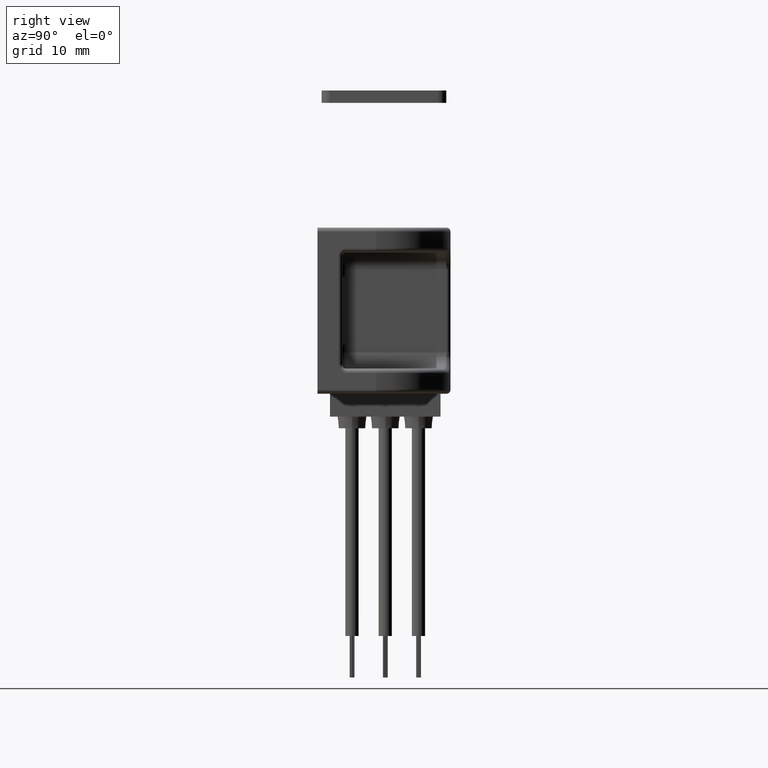
[diagram: clean part render]
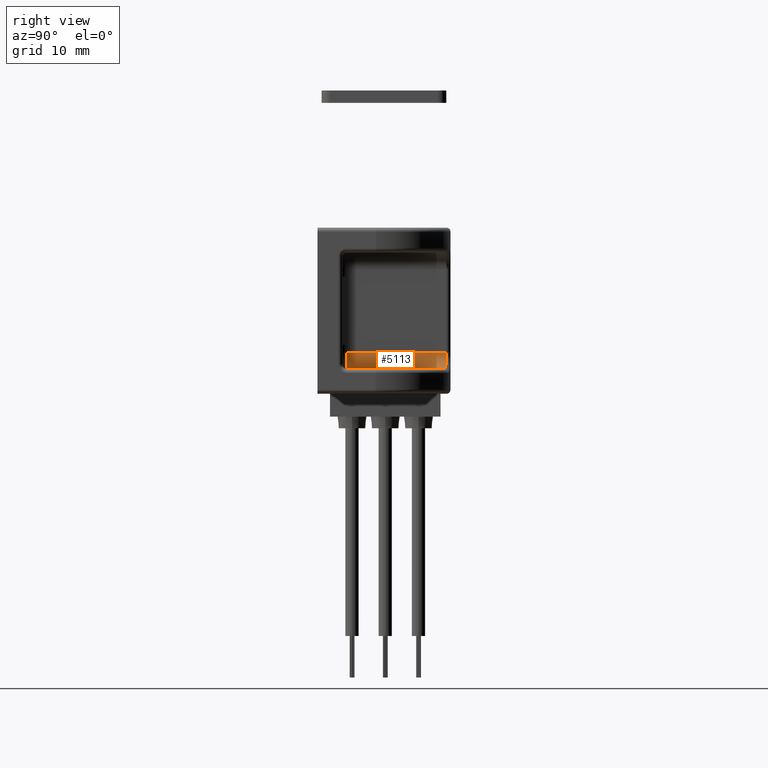
[diagram: same view with one face highlighted and labeled with its STEP entity id]
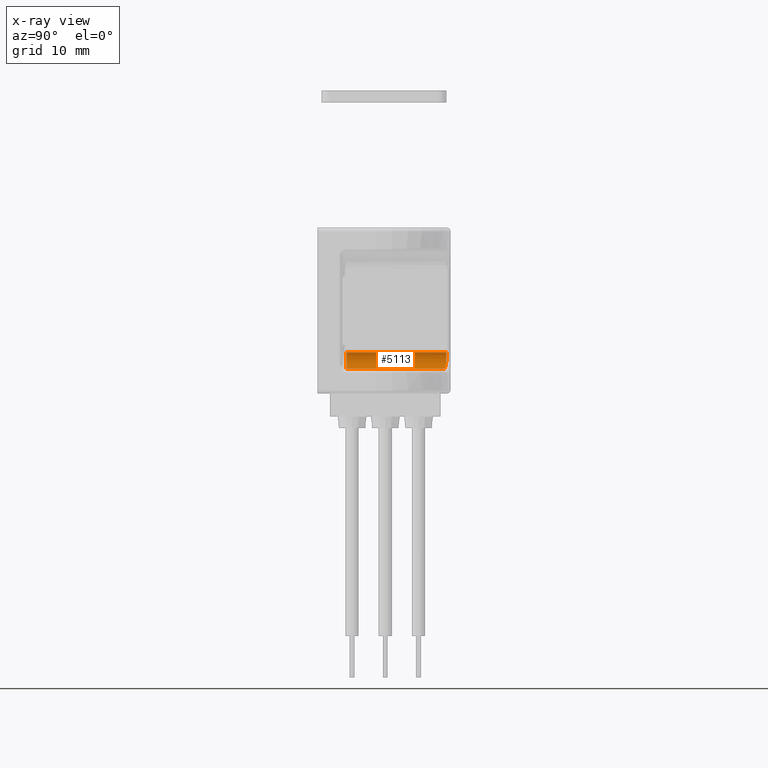
[diagram: x-ray of the same camera — body ghosted, the highlighted face saturated]
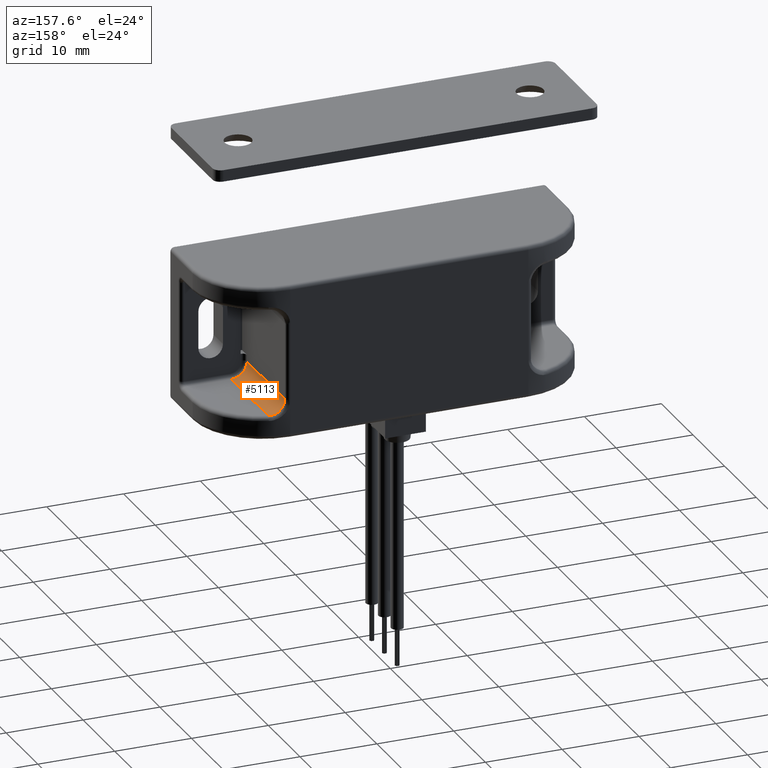
[diagram: same view with one face highlighted and labeled with its STEP entity id]
A machine part, right view. The second image highlights one B-rep face of the part: STEP entity #5113.
The next image is the same camera in x-ray: the body ghosted, the highlighted face saturated — about 0% of this face is hidden behind the body in this view.
A second angle (auxiliary view) of the same face is appended — the face is thin or edge-on in the first view.
In plain terms, the highlighted cylindrical surface (edge-blend (fillet) strip) has radius 2 mm, axis along (0, 1, 0).
Its self-contained STEP definition (entity closure, byte-faithful):
#75 = EDGE_CURVE ( 'NONE', #1912, #3795, #2586, .T. ) ;
#486 = LINE ( 'NONE', #1935, #2725 ) ;
#662 = LINE ( 'NONE', #5754, #1854 ) ;
#681 = ORIENTED_EDGE ( 'NONE', *, *, #75, .T. ) ;
#830 = B_SPLINE_CURVE_WITH_KNOTS ( 'NONE', 3,
 ( #4607, #3318, #4115, #4779, #3110, #1288, #1245, #6318, #5815, #5641, #5291, #5192, #5119, #4628, #4217, #4158 ),
 .UNSPECIFIED., .F., .F.,
 ( 4, 2, 2, 2, 2, 2, 2, 4 ),
 ( 0.0000000000000000000, 0.0003960062653791557300, 0.0007920125307583114700, 0.001188018796137467300, 0.001584025061516622900, 0.002376037592274934500, 0.002772043857654091100, 0.003168050123033246700 ),
 .UNSPECIFIED. ) ;
#1245 = CARTESIAN_POINT ( 'NONE',  ( 17.02066716594851000, 15.40484899431960600, -6.748742142202131900 ) ) ;
#1257 = DIRECTION ( 'NONE',  ( 0.0000000000000000000, -1.000000000000000000, 0.0000000000000000000 ) ) ;
#1288 = CARTESIAN_POINT ( 'NONE',  ( 17.13605862824037400, 15.38193705417541900, -6.808437027605843500 ) ) ;
#1312 = EDGE_CURVE ( 'NONE', #1912, #4425, #486, .T. ) ;
#1393 = VERTEX_POINT ( 'NONE', #3644 ) ;
#1650 = EDGE_CURVE ( 'NONE', #1393, #4425, #830, .T. ) ;
#1765 = FACE_OUTER_BOUND ( 'NONE', #4753, .T. ) ;
#1854 = VECTOR ( 'NONE', #1257, 1000.000000000000000 ) ;
#1912 = VERTEX_POINT ( 'NONE', #5278 ) ;
#1935 = CARTESIAN_POINT ( 'NONE',  ( 16.00000000000000000, 15.98610037780571400, -5.000000000000000000 ) ) ;
#2009 = CARTESIAN_POINT ( 'NONE',  ( 18.00000000000000400, 3.499999999999998700, -5.000000000000000000 ) ) ;
#2586 = CIRCLE ( 'NONE', #5018, 2.000000000000001800 ) ;
#2725 = VECTOR ( 'NONE', #4020, 1000.000000000000000 ) ;
#2844 = CARTESIAN_POINT ( 'NONE',  ( 18.00000000000000400, 3.499999999999998700, -7.000000000000000000 ) ) ;
#2872 = CARTESIAN_POINT ( 'NONE',  ( 16.00000000000000000, 15.50000000000000000, -5.000000000000000000 ) ) ;
#3098 = DIRECTION ( 'NONE',  ( 0.0000000000000000000, 0.0000000000000000000, 1.000000000000000000 ) ) ;
#3110 = CARTESIAN_POINT ( 'NONE',  ( 17.37699175388786100, 15.32531145586927000, -6.904914670511528700 ) ) ;
#3318 = CARTESIAN_POINT ( 'NONE',  ( 17.87508318397765100, 15.17208902067528500, -7.000000000000002700 ) ) ;
#3608 = DIRECTION ( 'NONE',  ( 0.0000000000000000000, 1.000000000000000000, 0.0000000000000000000 ) ) ;
#3628 = CARTESIAN_POINT ( 'NONE',  ( 18.00000000000000400, 0.0000000000000000000, -5.000000000000000000 ) ) ;
#3644 = CARTESIAN_POINT ( 'NONE',  ( 18.00000000000000400, 15.12403840463596300, -7.000000000000000000 ) ) ;
#3699 = ORIENTED_EDGE ( 'NONE', *, *, #1312, .F. ) ;
#3708 = AXIS2_PLACEMENT_3D ( 'NONE', #3628, #3608, #3098 ) ;
#3795 = VERTEX_POINT ( 'NONE', #2844 ) ;
#3897 = ORIENTED_EDGE ( 'NONE', *, *, #4328, .F. ) ;
#3999 = DIRECTION ( 'NONE',  ( 5.102127870520014400E-017, -1.000000000000000000, 0.0000000000000000000 ) ) ;
#4020 = DIRECTION ( 'NONE',  ( -0.0000000000000000000, 1.000000000000000000, -0.0000000000000000000 ) ) ;
#4115 = CARTESIAN_POINT ( 'NONE',  ( 17.75046640910035100, 15.21509854060958500, -6.988393373186131200 ) ) ;
#4158 = CARTESIAN_POINT ( 'NONE',  ( 16.00000000000000000, 15.50000000000000000, -5.000000000000000000 ) ) ;
#4217 = CARTESIAN_POINT ( 'NONE',  ( 16.00000000000000000, 15.50000000000000500, -5.133924720426794200 ) ) ;
#4259 = CYLINDRICAL_SURFACE ( 'NONE', #3708, 2.000000000000000000 ) ;
#4328 = EDGE_CURVE ( 'NONE', #1393, #3795, #662, .T. ) ;
#4425 = VERTEX_POINT ( 'NONE', #2872 ) ;
#4607 = CARTESIAN_POINT ( 'NONE',  ( 18.00000000000000400, 15.12403840463596300, -7.000000000000000000 ) ) ;
#4628 = CARTESIAN_POINT ( 'NONE',  ( 16.01331777351599000, 15.50004791799331000, -5.266171012777460800 ) ) ;
#4753 = EDGE_LOOP ( 'NONE', ( #3699, #681, #3897, #6139 ) ) ;
#4779 = CARTESIAN_POINT ( 'NONE',  ( 17.50213215234288100, 15.29155743689014500, -6.941160175201174500 ) ) ;
#5018 = AXIS2_PLACEMENT_3D ( 'NONE', #2009, #3999, #6510 ) ;
#5113 = ADVANCED_FACE ( 'NONE', ( #1765 ), #4259, .F. ) ;
#5119 = CARTESIAN_POINT ( 'NONE',  ( 16.06618320463417500, 15.49966161971247700, -5.527357449014869100 ) ) ;
#5192 = CARTESIAN_POINT ( 'NONE',  ( 16.10588035103203500, 15.49921189890130600, -5.655559105096242200 ) ) ;
#5278 = CARTESIAN_POINT ( 'NONE',  ( 16.00000000000000000, 3.499999999999999600, -5.000000000000000000 ) ) ;
#5291 = CARTESIAN_POINT ( 'NONE',  ( 16.25987993950286300, 15.49476019031291500, -6.020671403821944000 ) ) ;
#5641 = CARTESIAN_POINT ( 'NONE',  ( 16.41314349603689500, 15.48759307845150900, -6.245543036046145200 ) ) ;
#5754 = CARTESIAN_POINT ( 'NONE',  ( 18.00000000000000400, 2.999999999999998700, -7.000000000000000000 ) ) ;
#5815 = CARTESIAN_POINT ( 'NONE',  ( 16.69583899343033900, 15.45620683514128800, -6.522017353267187900 ) ) ;
#6139 = ORIENTED_EDGE ( 'NONE', *, *, #1650, .T. ) ;
#6318 = CARTESIAN_POINT ( 'NONE',  ( 16.80073945708511500, 15.44200150480788000, -6.605915947356059800 ) ) ;
#6510 = DIRECTION ( 'NONE',  ( 1.000000000000000000, 0.0000000000000000000, 0.0000000000000000000 ) ) ;